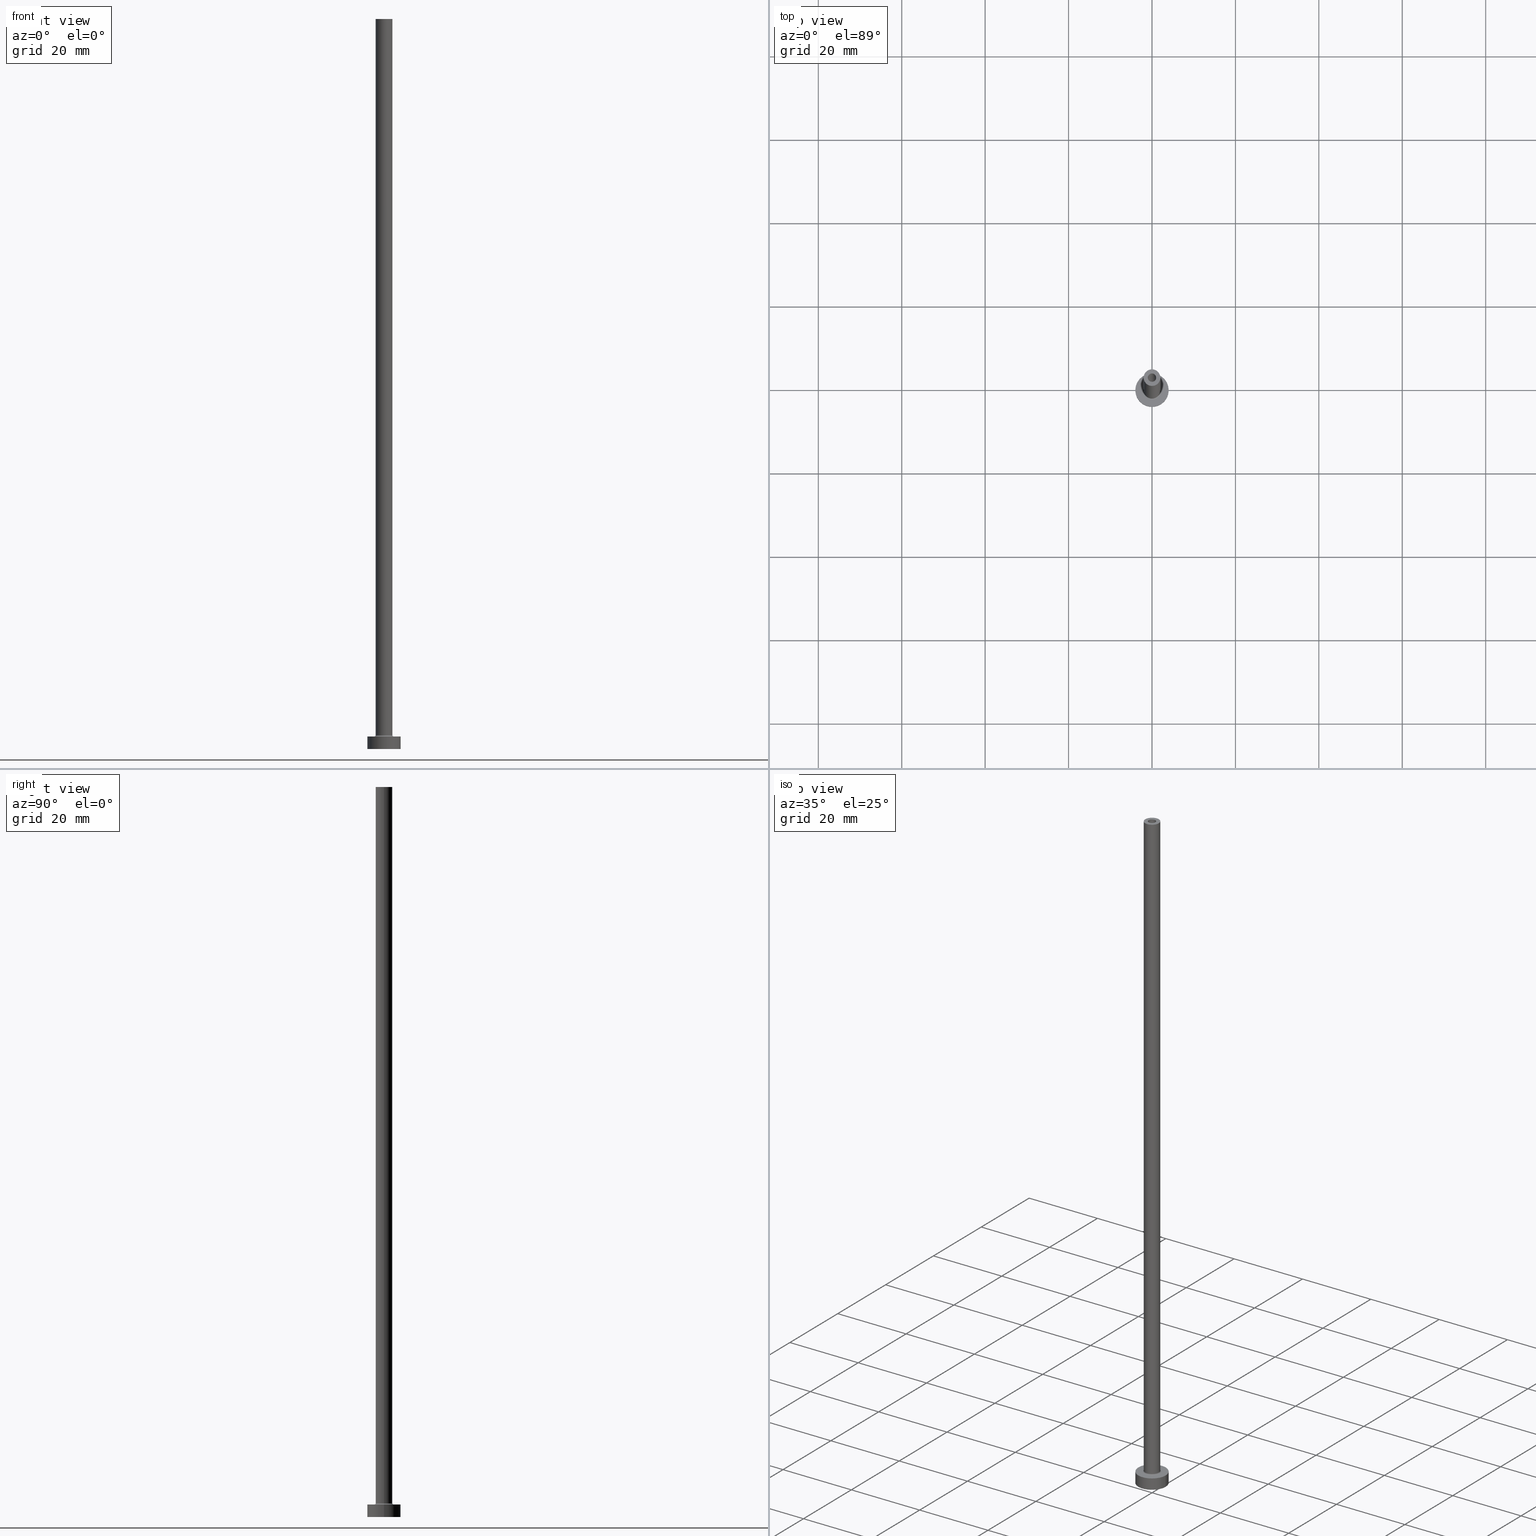
[diagram: canonical four-view strip — front | top / right | iso, engineering-drawing reading convention]
A machine part, canonical four-view strip (front | top / right | iso — engineering-drawing reading convention). The complete STEP part file that produces these views, byte-faithful:
ISO-10303-21;
HEADER;
FILE_DESCRIPTION (( 'STEP AP203' ),
    '1' );
FILE_NAME ('4e27.STEP',
    '2023-02-13T18:17:53',
    ( '' ),
    ( '' ),
    'SwSTEP 2.0',
    'SolidWorks 2019',
    '' );
FILE_SCHEMA (( 'CONFIG_CONTROL_DESIGN' ));
ENDSEC;

DATA;
#1 = VERTEX_POINT ( 'NONE', #370 ) ;
#2 = AXIS2_PLACEMENT_3D ( 'NONE', #335, #444, #17 ) ;
#3 = ORIENTED_EDGE ( 'NONE', *, *, #204, .T. ) ;
#4 = ADVANCED_FACE ( 'NONE', ( #58 ), #165, .F. ) ;
#5 = EDGE_CURVE ( 'NONE', #417, #451, #314, .T. ) ;
#6 = CIRCLE ( 'NONE', #189, 4.000000000000000000 ) ;
#7 = CARTESIAN_POINT ( 'NONE',  ( 0.000000000000000000, 0.000000000000000000, 3.000000000000000000 ) ) ;
#8 = APPROVAL ( #274, 'NEUR�EN�' ) ;
#9 = ADVANCED_FACE ( 'NONE', ( #293 ), #125, .F. ) ;
#10 = DIRECTION ( 'NONE',  ( 0.000000000000000000, -1.000000000000000000, 0.000000000000000000 ) ) ;
#11 = CC_DESIGN_APPROVAL ( #416, ( #329 ) ) ;
#12 = DIRECTION ( 'NONE',  ( 0.000000000000000000, 0.000000000000000000, 1.000000000000000000 ) ) ;
#13 = CC_DESIGN_PERSON_AND_ORGANIZATION_ASSIGNMENT ( #456, #458, ( #329 ) ) ;
#14 = CARTESIAN_POINT ( 'NONE',  ( 0.000000000000000000, 0.000000000000000000, 0.000000000000000000 ) ) ;
#15 = AXIS2_PLACEMENT_3D ( 'NONE', #418, #39, #428 ) ;
#16 = CARTESIAN_POINT ( 'NONE',  ( 1.149999999999999911, 1.408343819019456028E-16, 139.9999999999999716 ) ) ;
#17 = DIRECTION ( 'NONE',  ( 1.000000000000000000, 0.000000000000000000, 0.000000000000000000 ) ) ;
#18 = VERTEX_POINT ( 'NONE', #166 ) ;
#19 = LOCAL_TIME ( 19, 17, 53.00000000000000000, #381 ) ;
#20 = ADVANCED_FACE ( 'NONE', ( #173 ), #303, .T. ) ;
#21 = DIRECTION ( 'NONE',  ( 0.000000000000000000, 0.000000000000000000, -1.000000000000000000 ) ) ;
#22 = CARTESIAN_POINT ( 'NONE',  ( 0.000000000000000000, 0.000000000000000000, 3.000000000000000000 ) ) ;
#23 = EDGE_CURVE ( 'NONE', #18, #265, #405, .T. ) ;
#24 = EDGE_CURVE ( 'NONE', #98, #128, #6, .T. ) ;
#25 = DATE_TIME_ROLE ( 'classification_date' ) ;
#26 = DIRECTION ( 'NONE',  ( -0.000000000000000000, -0.000000000000000000, -1.000000000000000000 ) ) ;
#27 = CARTESIAN_POINT ( 'NONE',  ( 0.000000000000000000, 0.000000000000000000, 3.000000000000000000 ) ) ;
#28 = EDGE_LOOP ( 'NONE', ( #176, #64, #406, #392 ) ) ;
#29 = APPROVAL_ROLE ( '' ) ;
#30 = AXIS2_PLACEMENT_3D ( 'NONE', #279, #106, #431 ) ;
#31 = DATE_AND_TIME ( #171, #224 ) ;
#32 = DIRECTION ( 'NONE',  ( 1.224646799147353207E-16, 1.000000000000000000, -0.000000000000000000 ) ) ;
#33 = CC_DESIGN_PERSON_AND_ORGANIZATION_ASSIGNMENT ( #354, #182, ( #207 ) ) ;
#34 = VERTEX_POINT ( 'NONE', #391 ) ;
#35 = UNCERTAINTY_MEASURE_WITH_UNIT (LENGTH_MEASURE( 1.000000000000000082E-05 ), #129, 'distance_accuracy_value', 'NONE');
#36 = EDGE_LOOP ( 'NONE', ( #371, #397 ) ) ;
#37 = AXIS2_PLACEMENT_3D ( 'NONE', #383, #26, #71 ) ;
#38 = CARTESIAN_POINT ( 'NONE',  ( 0.000000000000000000, 0.000000000000000000, 175.0000000000000000 ) ) ;
#39 = DIRECTION ( 'NONE',  ( -0.000000000000000000, -0.000000000000000000, -1.000000000000000000 ) ) ;
#40 = CIRCLE ( 'NONE', #253, 4.000000000000000000 ) ;
#41 = CARTESIAN_POINT ( 'NONE',  ( 2.000000000000000000, 2.449293598294706414E-16, 3.299999999999997158 ) ) ;
#42 = CARTESIAN_POINT ( 'NONE',  ( 0.000000000000000000, 0.000000000000000000, 3.299999999999997158 ) ) ;
#43 = ADVANCED_FACE ( 'NONE', ( #434 ), #369, .F. ) ;
#44 = LOCAL_TIME ( 19, 17, 53.00000000000000000, #423 ) ;
#45 = EDGE_CURVE ( 'NONE', #34, #457, #113, .T. ) ;
#46 = EDGE_CURVE ( 'NONE', #265, #134, #368, .T. ) ;
#47 = ORIENTED_EDGE ( 'NONE', *, *, #264, .T. ) ;
#48 = DIRECTION ( 'NONE',  ( 0.000000000000000000, 0.000000000000000000, 1.000000000000000000 ) ) ;
#49 = DIRECTION ( 'NONE',  ( -0.000000000000000000, -0.000000000000000000, -1.000000000000000000 ) ) ;
#50 = EDGE_CURVE ( 'NONE', #128, #98, #40, .T. ) ;
#51 = CIRCLE ( 'NONE', #296, 2.000000000000000000 ) ;
#52 = DIRECTION ( 'NONE',  ( -0.000000000000000000, -0.000000000000000000, -1.000000000000000000 ) ) ;
#53 = VERTEX_POINT ( 'NONE', #438 ) ;
#54 = DIRECTION ( 'NONE',  ( 1.000000000000000000, 0.000000000000000000, 0.000000000000000000 ) ) ;
#55 = EDGE_CURVE ( 'NONE', #1, #53, #51, .T. ) ;
#56 = FACE_OUTER_BOUND ( 'NONE', #214, .T. ) ;
#57 = EDGE_LOOP ( 'NONE', ( #178, #240, #170, #168 ) ) ;
#58 = FACE_OUTER_BOUND ( 'NONE', #57, .T. ) ;
#59 = LINE ( 'NONE', #203, #322 ) ;
#60 = EDGE_CURVE ( 'NONE', #451, #417, #403, .T. ) ;
#61 = ORIENTED_EDGE ( 'NONE', *, *, #332, .T. ) ;
#62 =( NAMED_UNIT ( * ) SI_UNIT ( $, .STERADIAN. ) SOLID_ANGLE_UNIT ( ) );
#63 = DIRECTION ( 'NONE',  ( -1.000000000000000000, 0.000000000000000000, 0.000000000000000000 ) ) ;
#64 = ORIENTED_EDGE ( 'NONE', *, *, #292, .T. ) ;
#65 = CALENDAR_DATE ( 2023, 13, 2 ) ;
#66 = EDGE_LOOP ( 'NONE', ( #233, #378, #61, #130 ) ) ;
#67 = VECTOR ( 'NONE', #90, 1000.000000000000000 ) ;
#68 = DATE_AND_TIME ( #65, #102 ) ;
#69 = CARTESIAN_POINT ( 'NONE',  ( 0.000000000000000000, 0.000000000000000000, 3.299999999999997158 ) ) ;
#70 = CIRCLE ( 'NONE', #275, 1.000000000000000000 ) ;
#71 = DIRECTION ( 'NONE',  ( -1.000000000000000000, 0.000000000000000000, 0.000000000000000000 ) ) ;
#72 = ORIENTED_EDGE ( 'NONE', *, *, #50, .F. ) ;
#73 =( NAMED_UNIT ( * ) PLANE_ANGLE_UNIT ( ) SI_UNIT ( $, .RADIAN. ) );
#74 = DIRECTION ( 'NONE',  ( 1.000000000000000000, 0.000000000000000000, 0.000000000000000000 ) ) ;
#75 = CALENDAR_DATE ( 2023, 13, 2 ) ;
#76 = DIRECTION ( 'NONE',  ( 1.000000000000000000, 0.000000000000000000, 0.000000000000000000 ) ) ;
#77 = EDGE_LOOP ( 'NONE', ( #299, #111 ) ) ;
#78 = AXIS2_PLACEMENT_3D ( 'NONE', #14, #157, #154 ) ;
#79 = DIRECTION ( 'NONE',  ( -0.000000000000000000, -0.000000000000000000, -1.000000000000000000 ) ) ;
#80 = CARTESIAN_POINT ( 'NONE',  ( 0.000000000000000000, 0.000000000000000000, 3.299999999999997158 ) ) ;
#81 = EDGE_LOOP ( 'NONE', ( #232, #304, #86, #3 ) ) ;
#82 = DIRECTION ( 'NONE',  ( 1.000000000000000000, 0.000000000000000000, -0.000000000000000000 ) ) ;
#83 = CIRCLE ( 'NONE', #261, 0.2999999999999999334 ) ;
#84 = CARTESIAN_POINT ( 'NONE',  ( 0.000000000000000000, 0.000000000000000000, 175.0000000000000000 ) ) ;
#85 = CARTESIAN_POINT ( 'NONE',  ( 4.000000000000000000, 4.898587196589412829E-16, 3.000000000000000000 ) ) ;
#86 = ORIENTED_EDGE ( 'NONE', *, *, #218, .T. ) ;
#87 = CYLINDRICAL_SURFACE ( 'NONE', #321, 2.000000000000000000 ) ;
#88 = PLANE ( 'NONE',  #432 ) ;
#89 = CIRCLE ( 'NONE', #346, 2.000000000000000000 ) ;
#90 = DIRECTION ( 'NONE',  ( 0.000000000000000000, 0.000000000000000000, -1.000000000000000000 ) ) ;
#91 = CARTESIAN_POINT ( 'NONE',  ( 1.149999999999999911, 1.408343819019456028E-16, 143.2526911934581051 ) ) ;
#92 = PRODUCT_DEFINITION_SHAPE ( 'NONE', 'NONE',  #207 ) ;
#93 = DIRECTION ( 'NONE',  ( 1.000000000000000000, 0.000000000000000000, 0.000000000000000000 ) ) ;
#94 = CARTESIAN_POINT ( 'NONE',  ( 0.000000000000000000, 0.000000000000000000, 0.000000000000000000 ) ) ;
#95 = AXIS2_PLACEMENT_3D ( 'NONE', #409, #149, #315 ) ;
#96 = DIRECTION ( 'NONE',  ( 0.000000000000000000, 0.000000000000000000, -1.000000000000000000 ) ) ;
#97 = CARTESIAN_POINT ( 'NONE',  ( 0.000000000000000000, 0.000000000000000000, 143.2526911934581051 ) ) ;
#98 = VERTEX_POINT ( 'NONE', #364 ) ;
#99 = CIRCLE ( 'NONE', #283, 1.149999999999999911 ) ;
#100 = CARTESIAN_POINT ( 'NONE',  ( -2.299999999999999822, 2.816687638038912056E-16, 2.999999999999998668 ) ) ;
#101 = DIRECTION ( 'NONE',  ( 0.000000000000000000, 0.000000000000000000, 1.000000000000000000 ) ) ;
#102 = LOCAL_TIME ( 19, 17, 53.00000000000000000, #136 ) ;
#103 = ORIENTED_EDGE ( 'NONE', *, *, #426, .T. ) ;
#104 = VERTEX_POINT ( 'NONE', #160 ) ;
#105 = DIRECTION ( 'NONE',  ( -0.000000000000000000, -0.000000000000000000, -1.000000000000000000 ) ) ;
#106 = DIRECTION ( 'NONE',  ( 0.000000000000000000, 0.000000000000000000, 1.000000000000000000 ) ) ;
#107 = ORIENTED_EDGE ( 'NONE', *, *, #422, .T. ) ;
#108 = CARTESIAN_POINT ( 'NONE',  ( 0.000000000000000000, 0.000000000000000000, 3.000000000000000000 ) ) ;
#109 = CIRCLE ( 'NONE', #161, 1.000000000000000000 ) ;
#110 = DATE_AND_TIME ( #137, #44 ) ;
#111 = ORIENTED_EDGE ( 'NONE', *, *, #337, .T. ) ;
#112 = COORDINATED_UNIVERSAL_TIME_OFFSET ( 1, 0, .AHEAD. ) ;
#113 = CIRCLE ( 'NONE', #213, 1.149999999999999911 ) ;
#114 = ADVANCED_FACE ( 'NONE', ( #254, #398 ), #325, .F. ) ;
#115 = FACE_OUTER_BOUND ( 'NONE', #77, .T. ) ;
#116 = EDGE_LOOP ( 'NONE', ( #184, #349, #408, #263 ) ) ;
#117 =( GEOMETRIC_REPRESENTATION_CONTEXT ( 3 ) GLOBAL_UNCERTAINTY_ASSIGNED_CONTEXT ( ( #35 ) ) GLOBAL_UNIT_ASSIGNED_CONTEXT ( ( #129, #73, #62 ) ) REPRESENTATION_CONTEXT ( 'NONE', 'WORKASPACE' ) );
#118 = DIRECTION ( 'NONE',  ( 0.000000000000000000, 0.000000000000000000, -1.000000000000000000 ) ) ;
#119 = CARTESIAN_POINT ( 'NONE',  ( 0.000000000000000000, 0.000000000000000000, 139.9999999999999716 ) ) ;
#120 = ORIENTED_EDGE ( 'NONE', *, *, #287, .T. ) ;
#121 = CARTESIAN_POINT ( 'NONE',  ( 2.299999999999999822, 0.000000000000000000, 3.299999999999997158 ) ) ;
#122 = CIRCLE ( 'NONE', #2, 2.299999999999999822 ) ;
#123 = DIRECTION ( 'NONE',  ( 1.000000000000000000, 0.000000000000000000, 0.000000000000000000 ) ) ;
#124 = DIRECTION ( 'NONE',  ( 0.000000000000000000, 0.000000000000000000, 1.000000000000000000 ) ) ;
#125 = CYLINDRICAL_SURFACE ( 'NONE', #151, 1.149999999999999911 ) ;
#126 = EDGE_LOOP ( 'NONE', ( #286, #72 ) ) ;
#127 = AXIS2_PLACEMENT_3D ( 'NONE', #268, #241, #76 ) ;
#128 = VERTEX_POINT ( 'NONE', #361 ) ;
#129 =( LENGTH_UNIT ( ) NAMED_UNIT ( * ) SI_UNIT ( .MILLI., .METRE. ) );
#130 = ORIENTED_EDGE ( 'NONE', *, *, #24, .T. ) ;
#131 = AXIS2_PLACEMENT_3D ( 'NONE', #376, #446, #63 ) ;
#132 = CARTESIAN_POINT ( 'NONE',  ( 0.000000000000000000, 0.000000000000000000, 139.9999999999999716 ) ) ;
#133 = ORIENTED_EDGE ( 'NONE', *, *, #267, .F. ) ;
#134 = VERTEX_POINT ( 'NONE', #441 ) ;
#135 = CC_DESIGN_SECURITY_CLASSIFICATION ( #195, ( #329 ) ) ;
#136 = COORDINATED_UNIVERSAL_TIME_OFFSET ( 1, 0, .AHEAD. ) ;
#137 = CALENDAR_DATE ( 2023, 13, 2 ) ;
#138 = ORIENTED_EDGE ( 'NONE', *, *, #55, .T. ) ;
#139 = EDGE_LOOP ( 'NONE', ( #198, #237 ) ) ;
#140 = PERSON_AND_ORGANIZATION_ROLE ( 'classification_officer' ) ;
#141 = CYLINDRICAL_SURFACE ( 'NONE', #37, 4.000000000000000000 ) ;
#142 = ADVANCED_FACE ( 'NONE', ( #401 ), #87, .T. ) ;
#143 = DIRECTION ( 'NONE',  ( 0.000000000000000000, 0.000000000000000000, 1.000000000000000000 ) ) ;
#144 = CARTESIAN_POINT ( 'NONE',  ( 0.000000000000000000, 0.000000000000000000, 3.299999999999997158 ) ) ;
#145 = DATE_TIME_ROLE ( 'creation_date' ) ;
#146 = DIRECTION ( 'NONE',  ( -0.000000000000000000, -0.000000000000000000, -1.000000000000000000 ) ) ;
#147 = APPROVAL ( #388, 'NEUR�EN�' ) ;
#148 = CARTESIAN_POINT ( 'NONE',  ( 0.000000000000000000, 0.000000000000000000, 175.0000000000000000 ) ) ;
#149 = DIRECTION ( 'NONE',  ( -0.000000000000000000, -0.000000000000000000, -1.000000000000000000 ) ) ;
#150 = AXIS2_PLACEMENT_3D ( 'NONE', #22, #167, #448 ) ;
#151 = AXIS2_PLACEMENT_3D ( 'NONE', #97, #21, #311 ) ;
#152 = CARTESIAN_POINT ( 'NONE',  ( 0.000000000000000000, 0.000000000000000000, 0.000000000000000000 ) ) ;
#153 = DIRECTION ( 'NONE',  ( 0.000000000000000000, 0.000000000000000000, 1.000000000000000000 ) ) ;
#154 = DIRECTION ( 'NONE',  ( 1.000000000000000000, 0.000000000000000000, 0.000000000000000000 ) ) ;
#155 = CC_DESIGN_APPROVAL ( #147, ( #207 ) ) ;
#156 = FACE_BOUND ( 'NONE', #36, .T. ) ;
#157 = DIRECTION ( 'NONE',  ( -0.000000000000000000, -0.000000000000000000, -1.000000000000000000 ) ) ;
#158 = DIRECTION ( 'NONE',  ( 1.000000000000000000, 0.000000000000000000, 0.000000000000000000 ) ) ;
#159 = FACE_OUTER_BOUND ( 'NONE', #28, .T. ) ;
#160 = CARTESIAN_POINT ( 'NONE',  ( -4.000000000000000000, 0.000000000000000000, 3.000000000000000000 ) ) ;
#161 = AXIS2_PLACEMENT_3D ( 'NONE', #365, #442, #158 ) ;
#162 = CIRCLE ( 'NONE', #30, 2.000000000000000000 ) ;
#163 = DIRECTION ( 'NONE',  ( 0.000000000000000000, 0.000000000000000000, 1.000000000000000000 ) ) ;
#164 = CYLINDRICAL_SURFACE ( 'NONE', #245, 2.000000000000000000 ) ;
#165 = CYLINDRICAL_SURFACE ( 'NONE', #131, 1.000000000000000000 ) ;
#166 = CARTESIAN_POINT ( 'NONE',  ( 1.000000000000000000, 1.224646799147353207E-16, 175.0000000000000000 ) ) ;
#167 = DIRECTION ( 'NONE',  ( 0.000000000000000000, 0.000000000000000000, 1.000000000000000000 ) ) ;
#168 = ORIENTED_EDGE ( 'NONE', *, *, #46, .F. ) ;
#169 = PLANE ( 'NONE',  #393 ) ;
#170 = ORIENTED_EDGE ( 'NONE', *, *, #287, .F. ) ;
#171 = CALENDAR_DATE ( 2023, 13, 2 ) ;
#172 = DIRECTION ( 'NONE',  ( 1.000000000000000000, 0.000000000000000000, 0.000000000000000000 ) ) ;
#173 = FACE_OUTER_BOUND ( 'NONE', #116, .T. ) ;
#174 = CIRCLE ( 'NONE', #150, 4.000000000000000000 ) ;
#175 = COORDINATED_UNIVERSAL_TIME_OFFSET ( 1, 0, .AHEAD. ) ;
#176 = ORIENTED_EDGE ( 'NONE', *, *, #45, .T. ) ;
#177 = PERSON_AND_ORGANIZATION ( #334, #382 ) ;
#178 = ORIENTED_EDGE ( 'NONE', *, *, #236, .T. ) ;
#179 = EDGE_LOOP ( 'NONE', ( #449, #351, #187, #384 ) ) ;
#180 = VERTEX_POINT ( 'NONE', #259 ) ;
#181 = TOROIDAL_SURFACE ( 'NONE', #427, 2.299999999999999822, 0.2999999999999999889 ) ;
#182 = PERSON_AND_ORGANIZATION_ROLE ( 'creator' ) ;
#183 = CC_DESIGN_DATE_AND_TIME_ASSIGNMENT ( #68, #145, ( #207 ) ) ;
#184 = ORIENTED_EDGE ( 'NONE', *, *, #337, .F. ) ;
#185 = AXIS2_PLACEMENT_3D ( 'NONE', #80, #48, #443 ) ;
#186 = VECTOR ( 'NONE', #96, 1000.000000000000000 ) ;
#187 = ORIENTED_EDGE ( 'NONE', *, *, #225, .T. ) ;
#188 = CARTESIAN_POINT ( 'NONE',  ( 0.000000000000000000, 0.000000000000000000, 139.9999999999999716 ) ) ;
#189 = AXIS2_PLACEMENT_3D ( 'NONE', #447, #410, #123 ) ;
#190 = DIRECTION ( 'NONE',  ( 0.000000000000000000, 0.000000000000000000, -1.000000000000000000 ) ) ;
#191 = FACE_OUTER_BOUND ( 'NONE', #212, .T. ) ;
#192 = EDGE_CURVE ( 'NONE', #457, #34, #99, .T. ) ;
#193 = CARTESIAN_POINT ( 'NONE',  ( 0.000000000000000000, 0.000000000000000000, 139.9999999999999716 ) ) ;
#194 = DIRECTION ( 'NONE',  ( 1.000000000000000000, 0.000000000000000000, 0.000000000000000000 ) ) ;
#195 = SECURITY_CLASSIFICATION ( '', '', #277 ) ;
#196 = ADVANCED_FACE ( 'NONE', ( #330 ), #353, .F. ) ;
#197 = CARTESIAN_POINT ( 'NONE',  ( 0.000000000000000000, 0.000000000000000000, 175.0000000000000000 ) ) ;
#198 = ORIENTED_EDGE ( 'NONE', *, *, #60, .F. ) ;
#199 = CARTESIAN_POINT ( 'NONE',  ( 0.000000000000000000, 0.000000000000000000, 175.0000000000000000 ) ) ;
#200 = CARTESIAN_POINT ( 'NONE',  ( 1.000000000000000000, 1.224646799147353207E-16, 139.9999999999999716 ) ) ;
#201 = EDGE_LOOP ( 'NONE', ( #138, #103 ) ) ;
#202 = APPROVAL_PERSON_ORGANIZATION ( #310, #147, #239 ) ;
#203 = CARTESIAN_POINT ( 'NONE',  ( 1.000000000000000000, 1.224646799147353207E-16, 175.0000000000000000 ) ) ;
#204 = EDGE_CURVE ( 'NONE', #180, #390, #89, .T. ) ;
#205 = MECHANICAL_CONTEXT ( 'NONE', #320, 'mechanical' ) ;
#206 = DIRECTION ( 'NONE',  ( 0.000000000000000000, 0.000000000000000000, 1.000000000000000000 ) ) ;
#207 = PRODUCT_DEFINITION ( 'NEZN�M�', '', #329, #355 ) ;
#208 = CARTESIAN_POINT ( 'NONE',  ( 1.149999999999999911, 1.408343819019456028E-16, 0.000000000000000000 ) ) ;
#209 = VECTOR ( 'NONE', #281, 1000.000000000000000 ) ;
#210 = LOCAL_TIME ( 19, 17, 53.00000000000000000, #175 ) ;
#211 = APPROVAL_DATE_TIME ( #110, #8 ) ;
#212 = EDGE_LOOP ( 'NONE', ( #301, #430, #107, #420 ) ) ;
#213 = AXIS2_PLACEMENT_3D ( 'NONE', #119, #12, #93 ) ;
#214 = EDGE_LOOP ( 'NONE', ( #366, #424, #380, #452 ) ) ;
#215 = APPROVAL_DATE_TIME ( #31, #147 ) ;
#216 = ORIENTED_EDGE ( 'NONE', *, *, #238, .T. ) ;
#217 = AXIS2_PLACEMENT_3D ( 'NONE', #7, #436, #288 ) ;
#218 = EDGE_CURVE ( 'NONE', #1, #180, #316, .T. ) ;
#219 = CARTESIAN_POINT ( 'NONE',  ( -1.149999999999999911, 0.000000000000000000, 143.2526911934581051 ) ) ;
#220 = ADVANCED_BREP_SHAPE_REPRESENTATION ( '4e27', ( #252, #127 ), #117 ) ;
#221 = DIRECTION ( 'NONE',  ( 0.000000000000000000, 0.000000000000000000, 1.000000000000000000 ) ) ;
#222 = CIRCLE ( 'NONE', #15, 2.299999999999999822 ) ;
#223 = AXIS2_PLACEMENT_3D ( 'NONE', #197, #295, #324 ) ;
#224 = LOCAL_TIME ( 19, 17, 53.00000000000000000, #112 ) ;
#225 = EDGE_CURVE ( 'NONE', #34, #451, #394, .T. ) ;
#226 = LINE ( 'NONE', #91, #186 ) ;
#227 = DIRECTION ( 'NONE',  ( 0.000000000000000000, 0.000000000000000000, 1.000000000000000000 ) ) ;
#228 = ORIENTED_EDGE ( 'NONE', *, *, #343, .F. ) ;
#229 = EDGE_CURVE ( 'NONE', #257, #134, #109, .T. ) ;
#230 = CIRCLE ( 'NONE', #356, 2.000000000000000000 ) ;
#231 = CARTESIAN_POINT ( 'NONE',  ( 0.000000000000000000, 0.000000000000000000, 175.0000000000000000 ) ) ;
#232 = ORIENTED_EDGE ( 'NONE', *, *, #256, .F. ) ;
#233 = ORIENTED_EDGE ( 'NONE', *, *, #362, .F. ) ;
#234 = ORIENTED_EDGE ( 'NONE', *, *, #238, .F. ) ;
#235 = CARTESIAN_POINT ( 'NONE',  ( -1.000000000000000000, 0.000000000000000000, 175.0000000000000000 ) ) ;
#236 = EDGE_CURVE ( 'NONE', #265, #18, #425, .T. ) ;
#237 = ORIENTED_EDGE ( 'NONE', *, *, #5, .F. ) ;
#238 = EDGE_CURVE ( 'NONE', #340, #246, #222, .T. ) ;
#239 = APPROVAL_ROLE ( '' ) ;
#240 = ORIENTED_EDGE ( 'NONE', *, *, #267, .T. ) ;
#241 = DIRECTION ( 'NONE',  ( 0.000000000000000000, 0.000000000000000000, 1.000000000000000000 ) ) ;
#242 = FACE_BOUND ( 'NONE', #278, .T. ) ;
#243 = DIRECTION ( 'NONE',  ( -1.000000000000000000, 0.000000000000000000, 0.000000000000000000 ) ) ;
#244 = DIRECTION ( 'NONE',  ( 1.000000000000000000, 0.000000000000000000, 0.000000000000000000 ) ) ;
#245 = AXIS2_PLACEMENT_3D ( 'NONE', #231, #52, #262 ) ;
#246 = VERTEX_POINT ( 'NONE', #100 ) ;
#247 = APPROVAL_ROLE ( '' ) ;
#248 = PLANE ( 'NONE',  #437 ) ;
#249 = VECTOR ( 'NONE', #146, 1000.000000000000000 ) ;
#250 = CC_DESIGN_DATE_AND_TIME_ASSIGNMENT ( #280, #25, ( #195 ) ) ;
#251 = ADVANCED_FACE ( 'NONE', ( #159 ), #377, .F. ) ;
#252 = MANIFOLD_SOLID_BREP ( 'Odebrat vysunut�m4', #363 ) ;
#253 = AXIS2_PLACEMENT_3D ( 'NONE', #152, #153, #289 ) ;
#254 = FACE_BOUND ( 'NONE', #302, .T. ) ;
#255 = DIRECTION ( 'NONE',  ( 1.000000000000000000, 0.000000000000000000, 0.000000000000000000 ) ) ;
#256 = EDGE_CURVE ( 'NONE', #53, #390, #414, .T. ) ;
#257 = VERTEX_POINT ( 'NONE', #200 ) ;
#258 = VECTOR ( 'NONE', #190, 1000.000000000000000 ) ;
#259 = CARTESIAN_POINT ( 'NONE',  ( -2.000000000000000000, 0.000000000000000000, 3.299999999999997158 ) ) ;
#260 = PRODUCT ( '4e27', '4e27', '', ( #205 ) ) ;
#261 = AXIS2_PLACEMENT_3D ( 'NONE', #350, #32, #455 ) ;
#262 = DIRECTION ( 'NONE',  ( -1.000000000000000000, 0.000000000000000000, 0.000000000000000000 ) ) ;
#263 = ORIENTED_EDGE ( 'NONE', *, *, #332, .F. ) ;
#264 = EDGE_CURVE ( 'NONE', #246, #340, #122, .T. ) ;
#265 = VERTEX_POINT ( 'NONE', #235 ) ;
#266 = CARTESIAN_POINT ( 'NONE',  ( 0.000000000000000000, 0.000000000000000000, 143.2526911934581051 ) ) ;
#267 = EDGE_CURVE ( 'NONE', #18, #257, #59, .T. ) ;
#268 = CARTESIAN_POINT ( 'NONE',  ( 0.000000000000000000, 0.000000000000000000, 0.000000000000000000 ) ) ;
#269 = APPROVAL_PERSON_ORGANIZATION ( #419, #8, #247 ) ;
#270 = PRODUCT_RELATED_PRODUCT_CATEGORY ( 'detail', '', ( #260 ) ) ;
#271 = EDGE_CURVE ( 'NONE', #104, #333, #174, .T. ) ;
#272 = PERSON_AND_ORGANIZATION_ROLE ( 'design_owner' ) ;
#273 = ORIENTED_EDGE ( 'NONE', *, *, #204, .F. ) ;
#274 = APPROVAL_STATUS ( 'not_yet_approved' ) ;
#275 = AXIS2_PLACEMENT_3D ( 'NONE', #132, #101, #255 ) ;
#276 = ORIENTED_EDGE ( 'NONE', *, *, #404, .T. ) ;
#277 = SECURITY_CLASSIFICATION_LEVEL ( 'unclassified' ) ;
#278 = EDGE_LOOP ( 'NONE', ( #216, #47 ) ) ;
#279 = CARTESIAN_POINT ( 'NONE',  ( 0.000000000000000000, 0.000000000000000000, 175.0000000000000000 ) ) ;
#280 = DATE_AND_TIME ( #75, #210 ) ;
#281 = DIRECTION ( 'NONE',  ( -0.000000000000000000, -0.000000000000000000, -1.000000000000000000 ) ) ;
#282 = CARTESIAN_POINT ( 'NONE',  ( 4.000000000000000000, 4.898587196589412829E-16, 3.000000000000000000 ) ) ;
#283 = AXIS2_PLACEMENT_3D ( 'NONE', #193, #227, #194 ) ;
#284 = CARTESIAN_POINT ( 'NONE',  ( -1.149999999999999911, 0.000000000000000000, 0.000000000000000000 ) ) ;
#285 = CIRCLE ( 'NONE', #217, 4.000000000000000000 ) ;
#286 = ORIENTED_EDGE ( 'NONE', *, *, #24, .F. ) ;
#287 = EDGE_CURVE ( 'NONE', #134, #257, #70, .T. ) ;
#288 = DIRECTION ( 'NONE',  ( 1.000000000000000000, 0.000000000000000000, 0.000000000000000000 ) ) ;
#289 = DIRECTION ( 'NONE',  ( 1.000000000000000000, 0.000000000000000000, 0.000000000000000000 ) ) ;
#290 = VECTOR ( 'NONE', #79, 1000.000000000000000 ) ;
#291 = FACE_OUTER_BOUND ( 'NONE', #201, .T. ) ;
#292 = EDGE_CURVE ( 'NONE', #457, #417, #226, .T. ) ;
#293 = FACE_OUTER_BOUND ( 'NONE', #179, .T. ) ;
#294 = DIRECTION ( 'NONE',  ( -1.000000000000000000, 0.000000000000000000, 0.000000000000000000 ) ) ;
#295 = DIRECTION ( 'NONE',  ( 0.000000000000000000, 0.000000000000000000, 1.000000000000000000 ) ) ;
#296 = AXIS2_PLACEMENT_3D ( 'NONE', #326, #367, #54 ) ;
#297 = DIRECTION ( 'NONE',  ( 1.000000000000000000, 0.000000000000000000, 0.000000000000000000 ) ) ;
#298 = CARTESIAN_POINT ( 'NONE',  ( 2.000000000000000000, 2.449293598294706414E-16, 175.0000000000000000 ) ) ;
#299 = ORIENTED_EDGE ( 'NONE', *, *, #271, .T. ) ;
#300 = EDGE_LOOP ( 'NONE', ( #273, #276, #234, #228 ) ) ;
#301 = ORIENTED_EDGE ( 'NONE', *, *, #426, .F. ) ;
#302 = EDGE_LOOP ( 'NONE', ( #120, #415 ) ) ;
#303 = CYLINDRICAL_SURFACE ( 'NONE', #389, 4.000000000000000000 ) ;
#304 = ORIENTED_EDGE ( 'NONE', *, *, #55, .F. ) ;
#305 = DATE_AND_TIME ( #429, #19 ) ;
#306 = ORIENTED_EDGE ( 'NONE', *, *, #46, .T. ) ;
#307 = AXIS2_PLACEMENT_3D ( 'NONE', #188, #124, #82 ) ;
#308 = CIRCLE ( 'NONE', #400, 0.2999999999999999334 ) ;
#309 = DIRECTION ( 'NONE',  ( 0.000000000000000000, 0.000000000000000000, 1.000000000000000000 ) ) ;
#310 = PERSON_AND_ORGANIZATION ( #334, #382 ) ;
#311 = DIRECTION ( 'NONE',  ( -1.000000000000000000, 0.000000000000000000, 0.000000000000000000 ) ) ;
#312 = EDGE_LOOP ( 'NONE', ( #133, #336, #306, #411 ) ) ;
#313 = APPROVAL_DATE_TIME ( #305, #416 ) ;
#314 = CIRCLE ( 'NONE', #95, 1.149999999999999911 ) ;
#315 = DIRECTION ( 'NONE',  ( 1.000000000000000000, 0.000000000000000000, 0.000000000000000000 ) ) ;
#316 = LINE ( 'NONE', #386, #209 ) ;
#317 = ORIENTED_EDGE ( 'NONE', *, *, #192, .F. ) ;
#318 = PERSON_AND_ORGANIZATION ( #334, #382 ) ;
#319 = EDGE_LOOP ( 'NONE', ( #372, #317 ) ) ;
#320 = APPLICATION_CONTEXT ( 'configuration controlled 3d designs of mechanical parts and assemblies' ) ;
#321 = AXIS2_PLACEMENT_3D ( 'NONE', #84, #49, #294 ) ;
#322 = VECTOR ( 'NONE', #339, 1000.000000000000000 ) ;
#323 = CARTESIAN_POINT ( 'NONE',  ( -1.000000000000000000, 0.000000000000000000, 175.0000000000000000 ) ) ;
#324 = DIRECTION ( 'NONE',  ( 1.000000000000000000, 0.000000000000000000, 0.000000000000000000 ) ) ;
#325 = PLANE ( 'NONE',  #307 ) ;
#326 = CARTESIAN_POINT ( 'NONE',  ( 0.000000000000000000, 0.000000000000000000, 175.0000000000000000 ) ) ;
#327 = ADVANCED_FACE ( 'NONE', ( #385, #433 ), #169, .F. ) ;
#328 = ADVANCED_FACE ( 'NONE', ( #56 ), #181, .F. ) ;
#329 = PRODUCT_DEFINITION_FORMATION_WITH_SPECIFIED_SOURCE ( 'LIBOVOLN�', '', #260, .NOT_KNOWN. ) ;
#330 = FACE_OUTER_BOUND ( 'NONE', #312, .T. ) ;
#331 = ADVANCED_FACE ( 'NONE', ( #421 ), #141, .T. ) ;
#332 = EDGE_CURVE ( 'NONE', #104, #98, #352, .T. ) ;
#333 = VERTEX_POINT ( 'NONE', #282 ) ;
#334 = PERSON ( 'NEUR�EN�', 'NEUR�EN�', 'NEUR�EN�', ('NEUR�EN�'), ('NEUR�EN�'), ('NEUR�EN�') ) ;
#335 = CARTESIAN_POINT ( 'NONE',  ( 0.000000000000000000, 0.000000000000000000, 3.000000000000000000 ) ) ;
#336 = ORIENTED_EDGE ( 'NONE', *, *, #23, .T. ) ;
#337 = EDGE_CURVE ( 'NONE', #333, #104, #285, .T. ) ;
#338 = APPROVAL_PERSON_ORGANIZATION ( #318, #416, #29 ) ;
#339 = DIRECTION ( 'NONE',  ( 0.000000000000000000, 0.000000000000000000, -1.000000000000000000 ) ) ;
#340 = VERTEX_POINT ( 'NONE', #435 ) ;
#341 = DIRECTION ( 'NONE',  ( -1.000000000000000000, 0.000000000000000000, 0.000000000000000000 ) ) ;
#342 = PERSON_AND_ORGANIZATION_ROLE ( 'design_supplier' ) ;
#343 = EDGE_CURVE ( 'NONE', #390, #340, #308, .T. ) ;
#344 = PERSON_AND_ORGANIZATION ( #334, #382 ) ;
#345 = APPLICATION_CONTEXT ( 'configuration controlled 3d designs of mechanical parts and assemblies' ) ;
#346 = AXIS2_PLACEMENT_3D ( 'NONE', #42, #143, #244 ) ;
#347 = CC_DESIGN_APPROVAL ( #8, ( #195 ) ) ;
#348 = APPLICATION_PROTOCOL_DEFINITION ( 'international standard', 'config_control_design', 1994, #345 ) ;
#349 = ORIENTED_EDGE ( 'NONE', *, *, #362, .T. ) ;
#350 = CARTESIAN_POINT ( 'NONE',  ( -2.299999999999999822, 2.816687638038912056E-16, 3.299999999999997158 ) ) ;
#351 = ORIENTED_EDGE ( 'NONE', *, *, #192, .T. ) ;
#352 = LINE ( 'NONE', #459, #249 ) ;
#353 = CYLINDRICAL_SURFACE ( 'NONE', #412, 1.000000000000000000 ) ;
#354 = PERSON_AND_ORGANIZATION ( #334, #382 ) ;
#355 = DESIGN_CONTEXT ( 'detailed design', #345, 'design' ) ;
#356 = AXIS2_PLACEMENT_3D ( 'NONE', #144, #387, #74 ) ;
#357 = CC_DESIGN_PERSON_AND_ORGANIZATION_ASSIGNMENT ( #344, #140, ( #195 ) ) ;
#358 = APPLICATION_PROTOCOL_DEFINITION ( 'international standard', 'config_control_design', 1994, #320 ) ;
#359 = DIRECTION ( 'NONE',  ( 1.000000000000000000, 0.000000000000000000, -0.000000000000000000 ) ) ;
#360 = DIRECTION ( 'NONE',  ( -1.000000000000000000, 0.000000000000000000, 0.000000000000000000 ) ) ;
#361 = CARTESIAN_POINT ( 'NONE',  ( 4.000000000000000000, 4.898587196589412829E-16, 0.000000000000000000 ) ) ;
#362 = EDGE_CURVE ( 'NONE', #333, #128, #399, .T. ) ;
#363 = CLOSED_SHELL ( 'NONE', ( #4, #251, #43, #461, #20, #331, #445, #327, #142, #375, #328, #9, #114, #196 ) ) ;
#364 = CARTESIAN_POINT ( 'NONE',  ( -4.000000000000000000, 0.000000000000000000, 0.000000000000000000 ) ) ;
#365 = CARTESIAN_POINT ( 'NONE',  ( 0.000000000000000000, 0.000000000000000000, 139.9999999999999716 ) ) ;
#366 = ORIENTED_EDGE ( 'NONE', *, *, #404, .F. ) ;
#367 = DIRECTION ( 'NONE',  ( 0.000000000000000000, 0.000000000000000000, 1.000000000000000000 ) ) ;
#368 = LINE ( 'NONE', #323, #258 ) ;
#369 = TOROIDAL_SURFACE ( 'NONE', #185, 2.299999999999999822, 0.2999999999999999889 ) ;
#370 = CARTESIAN_POINT ( 'NONE',  ( -2.000000000000000000, 0.000000000000000000, 175.0000000000000000 ) ) ;
#371 = ORIENTED_EDGE ( 'NONE', *, *, #236, .F. ) ;
#372 = ORIENTED_EDGE ( 'NONE', *, *, #45, .F. ) ;
#373 = PERSON_AND_ORGANIZATION ( #334, #382 ) ;
#374 = CC_DESIGN_PERSON_AND_ORGANIZATION_ASSIGNMENT ( #177, #272, ( #260 ) ) ;
#375 = ADVANCED_FACE ( 'NONE', ( #156, #291 ), #88, .T. ) ;
#376 = CARTESIAN_POINT ( 'NONE',  ( 0.000000000000000000, 0.000000000000000000, 175.0000000000000000 ) ) ;
#377 = CYLINDRICAL_SURFACE ( 'NONE', #453, 1.149999999999999911 ) ;
#378 = ORIENTED_EDGE ( 'NONE', *, *, #271, .F. ) ;
#379 = DIRECTION ( 'NONE',  ( 1.000000000000000000, 0.000000000000000000, -0.000000000000000000 ) ) ;
#380 = ORIENTED_EDGE ( 'NONE', *, *, #343, .T. ) ;
#381 = COORDINATED_UNIVERSAL_TIME_OFFSET ( 1, 0, .AHEAD. ) ;
#382 = ORGANIZATION ( 'NEUR�EN�', 'NEUR�EN�', '' ) ;
#383 = CARTESIAN_POINT ( 'NONE',  ( 0.000000000000000000, 0.000000000000000000, 3.000000000000000000 ) ) ;
#384 = ORIENTED_EDGE ( 'NONE', *, *, #60, .T. ) ;
#385 = FACE_BOUND ( 'NONE', #139, .T. ) ;
#386 = CARTESIAN_POINT ( 'NONE',  ( -2.000000000000000000, 0.000000000000000000, 175.0000000000000000 ) ) ;
#387 = DIRECTION ( 'NONE',  ( 0.000000000000000000, 0.000000000000000000, 1.000000000000000000 ) ) ;
#388 = APPROVAL_STATUS ( 'not_yet_approved' ) ;
#389 = AXIS2_PLACEMENT_3D ( 'NONE', #108, #450, #243 ) ;
#390 = VERTEX_POINT ( 'NONE', #41 ) ;
#391 = CARTESIAN_POINT ( 'NONE',  ( -1.149999999999999911, 0.000000000000000000, 139.9999999999999716 ) ) ;
#392 = ORIENTED_EDGE ( 'NONE', *, *, #225, .F. ) ;
#393 = AXIS2_PLACEMENT_3D ( 'NONE', #94, #440, #402 ) ;
#394 = LINE ( 'NONE', #219, #67 ) ;
#395 = DIRECTION ( 'NONE',  ( 0.000000000000000000, 0.000000000000000000, -1.000000000000000000 ) ) ;
#396 = AXIS2_PLACEMENT_3D ( 'NONE', #199, #163, #297 ) ;
#397 = ORIENTED_EDGE ( 'NONE', *, *, #23, .F. ) ;
#398 = FACE_OUTER_BOUND ( 'NONE', #319, .T. ) ;
#399 = LINE ( 'NONE', #85, #290 ) ;
#400 = AXIS2_PLACEMENT_3D ( 'NONE', #121, #10, #395 ) ;
#401 = FACE_OUTER_BOUND ( 'NONE', #81, .T. ) ;
#402 = DIRECTION ( 'NONE',  ( 1.000000000000000000, 0.000000000000000000, -0.000000000000000000 ) ) ;
#403 = CIRCLE ( 'NONE', #78, 1.149999999999999911 ) ;
#404 = EDGE_CURVE ( 'NONE', #180, #246, #83, .T. ) ;
#405 = CIRCLE ( 'NONE', #396, 1.000000000000000000 ) ;
#406 = ORIENTED_EDGE ( 'NONE', *, *, #5, .T. ) ;
#407 = DIRECTION ( 'NONE',  ( 0.000000000000000000, 0.000000000000000000, -1.000000000000000000 ) ) ;
#408 = ORIENTED_EDGE ( 'NONE', *, *, #50, .T. ) ;
#409 = CARTESIAN_POINT ( 'NONE',  ( 0.000000000000000000, 0.000000000000000000, 0.000000000000000000 ) ) ;
#410 = DIRECTION ( 'NONE',  ( 0.000000000000000000, 0.000000000000000000, 1.000000000000000000 ) ) ;
#411 = ORIENTED_EDGE ( 'NONE', *, *, #229, .F. ) ;
#412 = AXIS2_PLACEMENT_3D ( 'NONE', #148, #118, #360 ) ;
#413 = VECTOR ( 'NONE', #105, 1000.000000000000000 ) ;
#414 = LINE ( 'NONE', #298, #413 ) ;
#415 = ORIENTED_EDGE ( 'NONE', *, *, #229, .T. ) ;
#416 = APPROVAL ( #454, 'NEUR�EN�' ) ;
#417 = VERTEX_POINT ( 'NONE', #208 ) ;
#418 = CARTESIAN_POINT ( 'NONE',  ( 0.000000000000000000, 0.000000000000000000, 3.000000000000000000 ) ) ;
#419 = PERSON_AND_ORGANIZATION ( #334, #382 ) ;
#420 = ORIENTED_EDGE ( 'NONE', *, *, #218, .F. ) ;
#421 = FACE_OUTER_BOUND ( 'NONE', #66, .T. ) ;
#422 = EDGE_CURVE ( 'NONE', #390, #180, #230, .T. ) ;
#423 = COORDINATED_UNIVERSAL_TIME_OFFSET ( 1, 0, .AHEAD. ) ;
#424 = ORIENTED_EDGE ( 'NONE', *, *, #422, .F. ) ;
#425 = CIRCLE ( 'NONE', #223, 1.000000000000000000 ) ;
#426 = EDGE_CURVE ( 'NONE', #53, #1, #162, .T. ) ;
#427 = AXIS2_PLACEMENT_3D ( 'NONE', #69, #206, #172 ) ;
#428 = DIRECTION ( 'NONE',  ( 1.000000000000000000, 0.000000000000000000, 0.000000000000000000 ) ) ;
#429 = CALENDAR_DATE ( 2023, 13, 2 ) ;
#430 = ORIENTED_EDGE ( 'NONE', *, *, #256, .T. ) ;
#431 = DIRECTION ( 'NONE',  ( 1.000000000000000000, 0.000000000000000000, 0.000000000000000000 ) ) ;
#432 = AXIS2_PLACEMENT_3D ( 'NONE', #38, #221, #359 ) ;
#433 = FACE_OUTER_BOUND ( 'NONE', #126, .T. ) ;
#434 = FACE_OUTER_BOUND ( 'NONE', #300, .T. ) ;
#435 = CARTESIAN_POINT ( 'NONE',  ( 2.299999999999999822, 0.000000000000000000, 2.999999999999998668 ) ) ;
#436 = DIRECTION ( 'NONE',  ( 0.000000000000000000, 0.000000000000000000, 1.000000000000000000 ) ) ;
#437 = AXIS2_PLACEMENT_3D ( 'NONE', #27, #309, #379 ) ;
#438 = CARTESIAN_POINT ( 'NONE',  ( 2.000000000000000000, 2.449293598294706414E-16, 175.0000000000000000 ) ) ;
#439 = CC_DESIGN_PERSON_AND_ORGANIZATION_ASSIGNMENT ( #373, #342, ( #329 ) ) ;
#440 = DIRECTION ( 'NONE',  ( 0.000000000000000000, 0.000000000000000000, 1.000000000000000000 ) ) ;
#441 = CARTESIAN_POINT ( 'NONE',  ( -1.000000000000000000, 0.000000000000000000, 139.9999999999999716 ) ) ;
#442 = DIRECTION ( 'NONE',  ( 0.000000000000000000, 0.000000000000000000, 1.000000000000000000 ) ) ;
#443 = DIRECTION ( 'NONE',  ( 1.000000000000000000, 0.000000000000000000, 0.000000000000000000 ) ) ;
#444 = DIRECTION ( 'NONE',  ( -0.000000000000000000, -0.000000000000000000, -1.000000000000000000 ) ) ;
#445 = ADVANCED_FACE ( 'NONE', ( #242, #115 ), #248, .T. ) ;
#446 = DIRECTION ( 'NONE',  ( 0.000000000000000000, 0.000000000000000000, -1.000000000000000000 ) ) ;
#447 = CARTESIAN_POINT ( 'NONE',  ( 0.000000000000000000, 0.000000000000000000, 0.000000000000000000 ) ) ;
#448 = DIRECTION ( 'NONE',  ( 1.000000000000000000, 0.000000000000000000, 0.000000000000000000 ) ) ;
#449 = ORIENTED_EDGE ( 'NONE', *, *, #292, .F. ) ;
#450 = DIRECTION ( 'NONE',  ( -0.000000000000000000, -0.000000000000000000, -1.000000000000000000 ) ) ;
#451 = VERTEX_POINT ( 'NONE', #284 ) ;
#452 = ORIENTED_EDGE ( 'NONE', *, *, #264, .F. ) ;
#453 = AXIS2_PLACEMENT_3D ( 'NONE', #266, #407, #341 ) ;
#454 = APPROVAL_STATUS ( 'not_yet_approved' ) ;
#455 = DIRECTION ( 'NONE',  ( -1.000000000000000000, 1.224646799147353207E-16, 0.000000000000000000 ) ) ;
#456 = PERSON_AND_ORGANIZATION ( #334, #382 ) ;
#457 = VERTEX_POINT ( 'NONE', #16 ) ;
#458 = PERSON_AND_ORGANIZATION_ROLE ( 'creator' ) ;
#459 = CARTESIAN_POINT ( 'NONE',  ( -4.000000000000000000, 0.000000000000000000, 3.000000000000000000 ) ) ;
#460 = SHAPE_DEFINITION_REPRESENTATION ( #92, #220 ) ;
#461 = ADVANCED_FACE ( 'NONE', ( #191 ), #164, .T. ) ;
ENDSEC;
END-ISO-10303-21;
